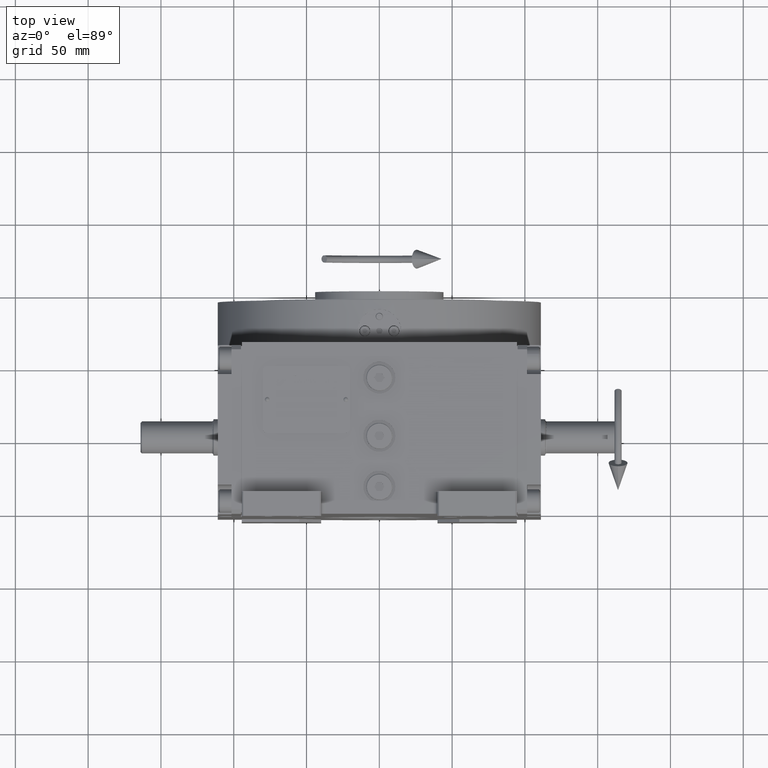
[diagram: clean part render]
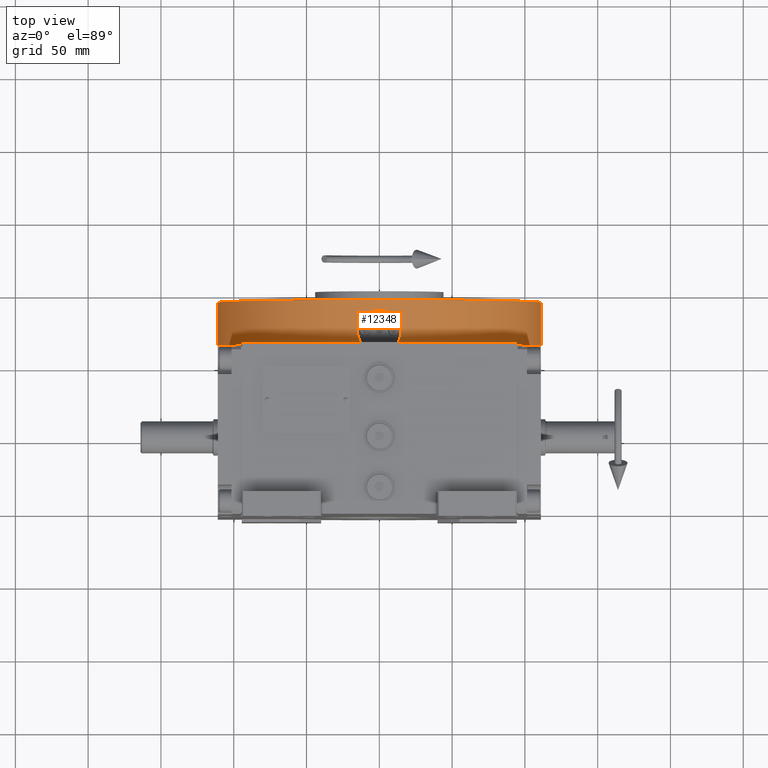
[diagram: same view with one face highlighted and labeled with its STEP entity id]
A machine part, top view. The second image highlights one B-rep face of the part: STEP entity #12348.
In plain terms, the highlighted cylindrical surface (partial cylindrical patch) has radius 111 mm, axis along (0, -1, 0).
Its self-contained STEP definition (entity closure, byte-faithful):
#122 = CARTESIAN_POINT ( 'NONE',  ( -14.08270934551654818, -110.1030482703059334, 3.332271771852777231 ) ) ;
#123 = CARTESIAN_POINT ( 'NONE',  ( 14.90452256169296419, -109.9949681922320792, 10.45750335553337784 ) ) ;
#2336 = CARTESIAN_POINT ( 'NONE',  ( 3.888704021194342886, -110.9328646191555379, 22.99538984600222236 ) ) ;
#2686 = CARTESIAN_POINT ( 'NONE',  ( 4.831313870564001078, -110.8958109121369517, 22.70931602902088997 ) ) ;
#2946 = DIRECTION ( 'NONE',  ( 1.000000000000000000, 0.000000000000000000, 0.000000000000000000 ) ) ;
#3203 = CARTESIAN_POINT ( 'NONE',  ( 15.00016352440266054, -109.9819527780179982, 8.499999734383411720 ) ) ;
#3265 = LINE ( 'NONE', #29533, #4792 ) ;
#4608 = CARTESIAN_POINT ( 'NONE',  ( 14.23434392197854237, -110.0841797345522082, 13.33443317041090204 ) ) ;
#4718 = DIRECTION ( 'NONE',  ( 0.000000000000000000, 0.000000000000000000, 1.000000000000000000 ) ) ;
#4792 = VECTOR ( 'NONE', #8772, 1000.000000000000000 ) ;
#5137 = VERTEX_POINT ( 'NONE', #51018 ) ;
#5967 = B_SPLINE_CURVE_WITH_KNOTS ( 'NONE', 3,
 ( #18124, #30549, #41923, #46428, #68189, #31236, #122, #37081, #15639, #47112, #63000, #10479, #25025, #9130, #31573, #26050 ),
 .UNSPECIFIED., .F., .F.,
 ( 4, 2, 2, 2, 2, 2, 2, 4 ),
 ( 0.000000000000000000, 0.03463656218074172288, 0.05195484327111257739, 0.06061398381629800464, 0.06927312436148343189, 0.1039096865422251825, 0.1212279676325960925, 0.1385462487229669748 ),
 .UNSPECIFIED. ) ;
#6349 = EDGE_CURVE ( 'NONE', #54705, #67836, #22920, .T. ) ;
#7501 = CARTESIAN_POINT ( 'NONE',  ( -1.964708668282119763, -110.9867875124339633, 23.40400608141957761 ) ) ;
#7959 = CARTESIAN_POINT ( 'NONE',  ( -12.35920709430827813, -110.3097910432252036, 0.000000000000000000 ) ) ;
#8532 = CARTESIAN_POINT ( 'NONE',  ( 111.0000000000000000, 0.000000000000000000, 0.000000000000000000 ) ) ;
#8772 = DIRECTION ( 'NONE',  ( 0.000000000000000000, 0.000000000000000000, 1.000000000000000000 ) ) ;
#9130 = CARTESIAN_POINT ( 'NONE',  ( -14.98584238347753761, -109.9837503902704725, 7.745164755432570658 ) ) ;
#9131 = CARTESIAN_POINT ( 'NONE',  ( -14.51887944269257957, -110.0465355512536831, 12.39498808193251556 ) ) ;
#9659 = ORIENTED_EDGE ( 'NONE', *, *, #35624, .T. ) ;
#10479 = CARTESIAN_POINT ( 'NONE',  ( -14.88662442570942801, -109.9972347522099341, 6.618314069757395224 ) ) ;
#10533 = CARTESIAN_POINT ( 'NONE',  ( -111.0000000000000000, 4.531193156845210737E-15, 0.000000000000000000 ) ) ;
#10778 = CARTESIAN_POINT ( 'NONE',  ( 13.16976447597570399, -110.2164501629939366, 1.282010985205253695 ) ) ;
#10807 = CARTESIAN_POINT ( 'NONE',  ( 11.90814556711610095, -110.3598382713341550, 17.63536541623848208 ) ) ;
#11658 = EDGE_CURVE ( 'NONE', #62231, #30865, #59368, .T. ) ;
#12348 = ADVANCED_FACE ( 'NONE', ( #23356 ), #19501, .T. ) ;
#12682 = CARTESIAN_POINT ( 'NONE',  ( 11.28600025733720003, -110.4251965464134742, 18.39295342521940313 ) ) ;
#13009 = CARTESIAN_POINT ( 'NONE',  ( 1.964787938511459942, -110.9867868697359228, 23.40400139933715451 ) ) ;
#13993 = ORIENTED_EDGE ( 'NONE', *, *, #6349, .T. ) ;
#14632 = CARTESIAN_POINT ( 'NONE',  ( -7.505576193284977826, -110.7468035710190719, 21.49636203183942484 ) ) ;
#15395 = DIRECTION ( 'NONE',  ( -1.000000000000000000, 0.000000000000000000, 0.000000000000000000 ) ) ;
#15639 = CARTESIAN_POINT ( 'NONE',  ( -14.26736596312562000, -110.0792690963544942, 3.866874469922342072 ) ) ;
#16867 = DIRECTION ( 'NONE',  ( 0.000000000000000000, 0.000000000000000000, 1.000000000000000000 ) ) ;
#17517 = CARTESIAN_POINT ( 'NONE',  ( -3.408483206793232689, -110.9486999150929876, 23.11604407734272115 ) ) ;
#17866 = CARTESIAN_POINT ( 'NONE',  ( 5.754785659470629255, -110.8534944668084847, 22.37888231139478279 ) ) ;
#18124 = CARTESIAN_POINT ( 'NONE',  ( -12.35920709430827813, -110.3097910432252036, 0.000000000000000000 ) ) ;
#19231 = AXIS2_PLACEMENT_3D ( 'NONE', #42711, #4718, #15395 ) ;
#19501 = CYLINDRICAL_SURFACE ( 'NONE', #63144, 111.0000000000000000 ) ;
#19817 = CARTESIAN_POINT ( 'NONE',  ( -7.930321500829421666, -110.7171062041697667, 21.24156919897702167 ) ) ;
#20164 = CARTESIAN_POINT ( 'NONE',  ( 13.67120868968887670, -110.1550445810021444, 14.69266741368030260 ) ) ;
#20476 = CARTESIAN_POINT ( 'NONE',  ( 14.92905650393711525, -109.9914728157634443, 6.992198174230376928 ) ) ;
#21538 = CARTESIAN_POINT ( 'NONE',  ( 13.45989550771997934, -110.1811509321854885, 15.13875466142020265 ) ) ;
#22142 = CARTESIAN_POINT ( 'NONE',  ( 4.263256414560599853E-14, 2.842170943040399481E-14, 0.000000000000000000 ) ) ;
#22739 = CARTESIAN_POINT ( 'NONE',  ( -3.888354573746293230, -110.9328771847478237, 22.99548474712409885 ) ) ;
#22920 = B_SPLINE_CURVE_WITH_KNOTS ( 'NONE', 3,
 ( #30526, #31885, #67828, #20476, #41559, #67139, #36711, #35692, #40881, #61959, #57445, #62628, #10778, #52951, #57809 ),
 .UNSPECIFIED., .F., .F.,
 ( 4, 2, 2, 2, 2, 1, 2, 4 ),
 ( 0.8614579083748022947, 0.8787756698279519663, 0.8960934312811017488, 0.9307289541874012029, 0.9393878349139760386, 0.9480467156405508744, 0.9653644770937005459, 1.000000000000000000 ),
 .UNSPECIFIED. ) ;
#23082 = CARTESIAN_POINT ( 'NONE',  ( -11.28584015030519616, -110.4252130203693980, 18.39312312461865417 ) ) ;
#23268 = ORIENTED_EDGE ( 'NONE', *, *, #11658, .F. ) ;
#23356 = FACE_OUTER_BOUND ( 'NONE', #42805, .T. ) ;
#24500 = VERTEX_POINT ( 'NONE', #44988 ) ;
#25025 = CARTESIAN_POINT ( 'NONE',  ( -14.92902940756069263, -109.9914765006813866, 6.992278458960996090 ) ) ;
#25026 = CARTESIAN_POINT ( 'NONE',  ( -11.90806301232916375, -110.3598472896125315, 17.63546682239085683 ) ) ;
#26050 = CARTESIAN_POINT ( 'NONE',  ( -15.00018157460869617, -109.9817751208699832, 8.499999499349108589 ) ) ;
#26051 = CARTESIAN_POINT ( 'NONE',  ( 15.00016352440266054, -109.9819527780179982, 8.499999734383411720 ) ) ;
#26285 = VERTEX_POINT ( 'NONE', #7959 ) ;
#26504 = B_SPLINE_CURVE_WITH_KNOTS ( 'NONE', 3,
 ( #34120, #33784, #44490, #9131, #54857, #34462, #50026, #39302, #28281, #25026, #23082, #46094, #67167, #28963, #19817, #14632, #44823, #27941, #49001, #22739, #17517, #7501, #60381, #49677, #13009, #44131, #2336, #2686, #17866, #43791, #38605, #33446, #54529, #49336, #65209, #12682, #10807, #31913, #47113, #21538, #20164, #4608, #31574, #123, #42612, #26051 ),
 .UNSPECIFIED., .F., .F.,
 ( 4, 2, 2, 2, 1, 2, 2, 2, 2, 1, 2, 2, 2, 2, 2, 1, 2, 2, 2, 2, 1, 2, 2, 2, 4 ),
 ( 0.1385462487229669748, 0.1837282274512069824, 0.2289102061794469622, 0.2515011955435669799, 0.2740921849076868311, 0.2966831742718067932, 0.3192741636359266444, 0.3644561423641664022, 0.3870471317282862533, 0.4096381210924060490, 0.4322291104565259001, 0.4548200998206457513, 0.5000020785488854536, 0.5451840572771251558, 0.5677750466412448960, 0.5903660360053647471, 0.6129570253694845983, 0.6355480147336044494, 0.6807299934618441517, 0.7033209828259638918, 0.7259119721900836320, 0.7485029615542033721, 0.7710939509183232232, 0.8162759296465627035, 0.8614579083748022947 ),
 .UNSPECIFIED. ) ;
#27795 = CIRCLE ( 'NONE', #54270, 111.0000000000000000 ) ;
#27941 = CARTESIAN_POINT ( 'NONE',  ( -5.754673046354830568, -110.8535004859885618, 22.37892337038985247 ) ) ;
#28281 = CARTESIAN_POINT ( 'NONE',  ( -12.49084410289228764, -110.2959761393431251, 16.84988908953093656 ) ) ;
#28957 = ORIENTED_EDGE ( 'NONE', *, *, #53406, .T. ) ;
#28963 = CARTESIAN_POINT ( 'NONE',  ( -9.155039958905479835, -110.6248419871347437, 20.42335287459646409 ) ) ;
#29533 = CARTESIAN_POINT ( 'NONE',  ( 111.0000000000000000, 0.000000000000000000, 0.000000000000000000 ) ) ;
#30526 = CARTESIAN_POINT ( 'NONE',  ( 15.00016352440266054, -109.9819527780179982, 8.499999734383411720 ) ) ;
#30549 = CARTESIAN_POINT ( 'NONE',  ( -12.79060159067036118, -110.2614572201849654, 0.6300730862795717035 ) ) ;
#30840 = AXIS2_PLACEMENT_3D ( 'NONE', #57759, #48076, #62923 ) ;
#30865 = VERTEX_POINT ( 'NONE', #61029 ) ;
#31236 = CARTESIAN_POINT ( 'NONE',  ( -14.01719661900627223, -110.1114117750709909, 3.156973181291049979 ) ) ;
#31573 = CARTESIAN_POINT ( 'NONE',  ( -15.00022701432521544, -109.9817857171703821, 8.123627962369207367 ) ) ;
#31574 = CARTESIAN_POINT ( 'NONE',  ( 14.51900455847550653, -110.0465189228315950, 12.39434505026233069 ) ) ;
#31885 = CARTESIAN_POINT ( 'NONE',  ( 15.00019318453401596, -109.9817903311494263, 8.123535051293789166 ) ) ;
#31913 = CARTESIAN_POINT ( 'NONE',  ( 12.49089272913521320, -110.2959706763026020, 16.84979656627309197 ) ) ;
#33446 = CARTESIAN_POINT ( 'NONE',  ( 7.930576881569013636, -110.7170877096085917, 21.24141663976412531 ) ) ;
#33784 = CARTESIAN_POINT ( 'NONE',  ( -15.00071831401526090, -109.9817187090293515, 9.481922053172867848 ) ) ;
#34120 = CARTESIAN_POINT ( 'NONE',  ( -15.00018157460869617, -109.9817751208699832, 8.499999499349108589 ) ) ;
#34158 = CIRCLE ( 'NONE', #30840, 111.0000000000000142 ) ;
#34462 = CARTESIAN_POINT ( 'NONE',  ( -13.67115137196839925, -110.1550517433764327, 14.69277020048659743 ) ) ;
#35624 = EDGE_CURVE ( 'NONE', #65829, #5137, #3265, .T. ) ;
#35692 = CARTESIAN_POINT ( 'NONE',  ( 14.26734174738253635, -110.0792722425702692, 3.866814090078479982 ) ) ;
#36711 = CARTESIAN_POINT ( 'NONE',  ( 14.54860699406517099, -110.0426713706116999, 4.770969639303558552 ) ) ;
#37081 = CARTESIAN_POINT ( 'NONE',  ( -14.20723929514453765, -110.0870487048050421, 3.685604386667282295 ) ) ;
#37346 = DIRECTION ( 'NONE',  ( -1.000000000000000000, -2.560514363099460107E-16, 0.000000000000000000 ) ) ;
#37511 = ORIENTED_EDGE ( 'NONE', *, *, #48625, .T. ) ;
#38605 = CARTESIAN_POINT ( 'NONE',  ( 7.505816495866817206, -110.7467874697829018, 21.49621537291856654 ) ) ;
#39302 = CARTESIAN_POINT ( 'NONE',  ( -12.99490879206749483, -110.2369590043951462, 16.00846849540674555 ) ) ;
#40583 = DIRECTION ( 'NONE',  ( 0.000000000000000000, 0.000000000000000000, -1.000000000000000000 ) ) ;
#40881 = CARTESIAN_POINT ( 'NONE',  ( 14.20718950667104963, -110.0870551266231843, 3.685462657117693830 ) ) ;
#41559 = CARTESIAN_POINT ( 'NONE',  ( 14.88666930942510902, -109.9972286734328719, 6.618332331495905052 ) ) ;
#41923 = CARTESIAN_POINT ( 'NONE',  ( -13.16975709974512121, -110.2164510765917527, 1.282029642087554100 ) ) ;
#42547 = DIRECTION ( 'NONE',  ( 0.000000000000000000, 0.000000000000000000, 1.000000000000000000 ) ) ;
#42612 = CARTESIAN_POINT ( 'NONE',  ( 15.00067630021842291, -109.9817244393827167, 9.482195243194965428 ) ) ;
#42686 = EDGE_CURVE ( 'NONE', #67836, #65829, #34158, .T. ) ;
#42711 = CARTESIAN_POINT ( 'NONE',  ( 0.000000000000000000, 0.000000000000000000, 30.00000000000000000 ) ) ;
#42805 = EDGE_LOOP ( 'NONE', ( #43071, #9659, #51714, #23268, #28957, #53945, #37511, #13993 ) ) ;
#43071 = ORIENTED_EDGE ( 'NONE', *, *, #42686, .T. ) ;
#43119 = CARTESIAN_POINT ( 'NONE',  ( -111.0000000000000000, 1.359357947053561722E-14, 0.000000000000000000 ) ) ;
#43791 = CARTESIAN_POINT ( 'NONE',  ( 6.639902048379165755, -110.8020754179939900, 21.95972879247906917 ) ) ;
#44131 = CARTESIAN_POINT ( 'NONE',  ( 3.408693875964971198, -110.9486936330835505, 23.11598592882078407 ) ) ;
#44490 = CARTESIAN_POINT ( 'NONE',  ( -14.90453354374295891, -109.9949668255244433, 10.45730428033682813 ) ) ;
#44823 = CARTESIAN_POINT ( 'NONE',  ( -6.639755865926522560, -110.8020839931811565, 21.95980936459933019 ) ) ;
#44980 = CARTESIAN_POINT ( 'NONE',  ( 12.35920709430827813, -110.3097910432252036, 0.000000000000000000 ) ) ;
#44988 = CARTESIAN_POINT ( 'NONE',  ( -15.00018157460869617, -109.9817751208699832, 8.499999499349108589 ) ) ;
#46094 = CARTESIAN_POINT ( 'NONE',  ( -10.95345950841069538, -110.4587870611709519, 18.75960009898651748 ) ) ;
#46428 = CARTESIAN_POINT ( 'NONE',  ( -13.66038436090427233, -110.1563481902365282, 2.292789680092145677 ) ) ;
#47112 = CARTESIAN_POINT ( 'NONE',  ( -14.54855790297208529, -110.0426777389478588, 4.770800955029040225 ) ) ;
#47113 = CARTESIAN_POINT ( 'NONE',  ( 12.99501050598395757, -110.2369471174213515, 16.00826603433886675 ) ) ;
#48076 = DIRECTION ( 'NONE',  ( 0.000000000000000000, 0.000000000000000000, 1.000000000000000000 ) ) ;
#48625 = EDGE_CURVE ( 'NONE', #24500, #54705, #26504, .T. ) ;
#49001 = CARTESIAN_POINT ( 'NONE',  ( -4.831113224141963869, -110.8958199698845419, 22.70937072224167252 ) ) ;
#49336 = CARTESIAN_POINT ( 'NONE',  ( 9.910851678336534576, -110.5588658279260699, 19.80277067397714319 ) ) ;
#49677 = CARTESIAN_POINT ( 'NONE',  ( 0.9889394874797470258, -110.9999984638126449, 23.50000436735705733 ) ) ;
#50026 = CARTESIAN_POINT ( 'NONE',  ( -13.45969729556516015, -110.1811750425752194, 15.13912647065042805 ) ) ;
#51018 = CARTESIAN_POINT ( 'NONE',  ( 111.0000000000000000, 0.000000000000000000, 30.00000000000000000 ) ) ;
#51714 = ORIENTED_EDGE ( 'NONE', *, *, #55932, .F. ) ;
#52951 = CARTESIAN_POINT ( 'NONE',  ( 12.79061008394213061, -110.2614562685912318, 0.6300699406160799043 ) ) ;
#53406 = EDGE_CURVE ( 'NONE', #62231, #26285, #27795, .T. ) ;
#53945 = ORIENTED_EDGE ( 'NONE', *, *, #64392, .T. ) ;
#54270 = AXIS2_PLACEMENT_3D ( 'NONE', #22142, #42547, #37346 ) ;
#54529 = CARTESIAN_POINT ( 'NONE',  ( 9.155131626163086622, -110.6248335917129850, 20.42328748179446407 ) ) ;
#54705 = VERTEX_POINT ( 'NONE', #3203 ) ;
#54857 = CARTESIAN_POINT ( 'NONE',  ( -14.23437111462543214, -110.0841764135789163, 13.33441362819727338 ) ) ;
#55811 = CARTESIAN_POINT ( 'NONE',  ( 0.000000000000000000, 0.000000000000000000, 0.000000000000000000 ) ) ;
#55932 = EDGE_CURVE ( 'NONE', #30865, #5137, #58954, .T. ) ;
#57445 = CARTESIAN_POINT ( 'NONE',  ( 13.88615082730066597, -110.1281404534645390, 2.806289983460267479 ) ) ;
#57759 = CARTESIAN_POINT ( 'NONE',  ( -5.684341886080798963E-14, 5.684341886080798963E-14, 0.000000000000000000 ) ) ;
#57809 = CARTESIAN_POINT ( 'NONE',  ( 12.35920709430827813, -110.3097910432252036, 0.000000000000000000 ) ) ;
#58660 = VECTOR ( 'NONE', #16867, 1000.000000000000000 ) ;
#58954 = CIRCLE ( 'NONE', #19231, 111.0000000000000000 ) ;
#59368 = LINE ( 'NONE', #43119, #58660 ) ;
#60381 = CARTESIAN_POINT ( 'NONE',  ( -0.9885946096268580785, -111.0000015359194805, 23.49999561208149856 ) ) ;
#61029 = CARTESIAN_POINT ( 'NONE',  ( -111.0000000000000000, 4.531193156845210737E-15, 30.00000000000000000 ) ) ;
#61959 = CARTESIAN_POINT ( 'NONE',  ( 14.08267207994800607, -110.1030530331438797, 3.332153254856740965 ) ) ;
#62231 = VERTEX_POINT ( 'NONE', #10533 ) ;
#62628 = CARTESIAN_POINT ( 'NONE',  ( 13.66037569775399518, -110.1563492564877720, 2.292729208048653433 ) ) ;
#62923 = DIRECTION ( 'NONE',  ( 0.1113442080568318032, -0.9937819012903167382, 0.000000000000000000 ) ) ;
#63000 = CARTESIAN_POINT ( 'NONE',  ( -14.71739435327712187, -110.0200493689661130, 5.503857179243137665 ) ) ;
#63144 = AXIS2_PLACEMENT_3D ( 'NONE', #55811, #40583, #2946 ) ;
#64392 = EDGE_CURVE ( 'NONE', #26285, #24500, #5967, .T. ) ;
#65209 = CARTESIAN_POINT ( 'NONE',  ( 10.95369226189674272, -110.4587641356198588, 18.75934940849484178 ) ) ;
#65829 = VERTEX_POINT ( 'NONE', #8532 ) ;
#67139 = CARTESIAN_POINT ( 'NONE',  ( 14.71746435414367937, -110.0200399874456991, 5.504056977119167193 ) ) ;
#67167 = CARTESIAN_POINT ( 'NONE',  ( -9.910765466444356520, -110.5588729355499993, 19.80286059959883715 ) ) ;
#67828 = CARTESIAN_POINT ( 'NONE',  ( 14.98581507868787988, -109.9837541035309130, 7.744811308917086912 ) ) ;
#67836 = VERTEX_POINT ( 'NONE', #44980 ) ;
#68189 = CARTESIAN_POINT ( 'NONE',  ( -13.81090885456181283, -110.1375413436830115, 2.635180560142445394 ) ) ;